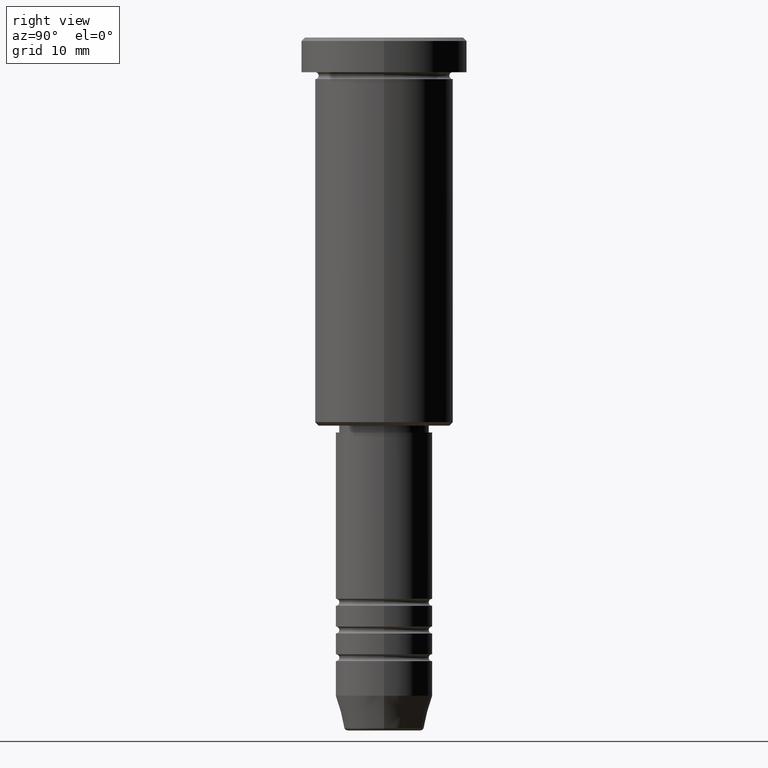
[diagram: clean part render]
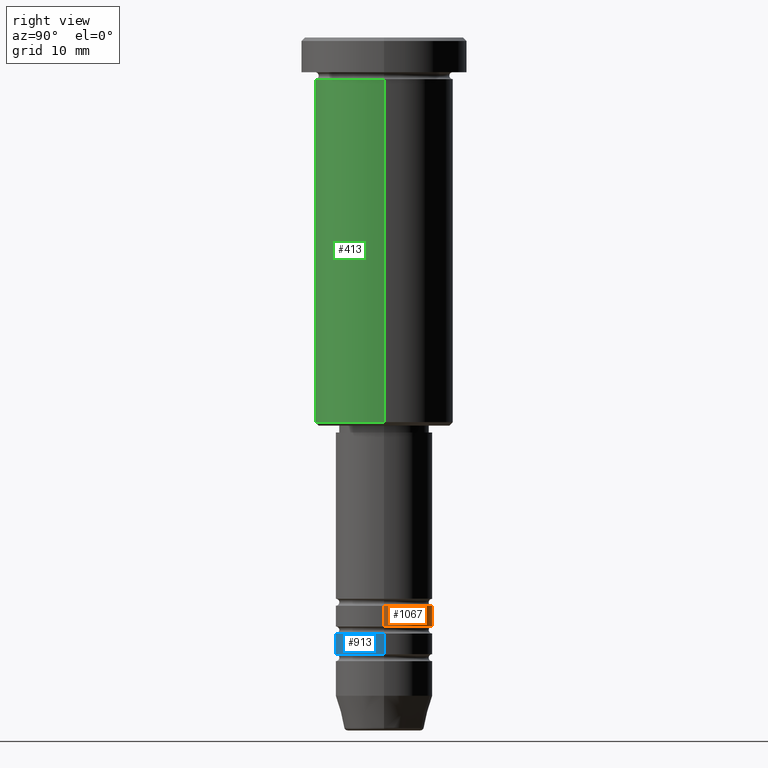
[diagram: same view with three faces highlighted in distinct colors, each labeled with its STEP entity id]
A machine part, right view with three faces highlighted in distinct colors.
Their STEP definitions:

[orange] entity #1067 — the highlighted cylindrical surface (partial cylindrical patch) has radius 7 mm, axis along (-0, -0, 1).
#13 = CARTESIAN_POINT ( 'NONE',  ( 0.000000000000000000, 0.000000000000000000, -81.99999999999998579 ) ) ;
#34 = DIRECTION ( 'NONE',  ( -0.000000000000000000, -0.000000000000000000, 1.000000000000000000 ) ) ;
#114 = CARTESIAN_POINT ( 'NONE',  ( 0.000000000000000000, 0.000000000000000000, -84.99999999999998579 ) ) ;
#128 = VECTOR ( 'NONE', #34, 1000.000000000000000 ) ;
#130 = CARTESIAN_POINT ( 'NONE',  ( -7.000000000000002665, 8.572527594031475162E-16, -84.99999999999998579 ) ) ;
#131 = AXIS2_PLACEMENT_3D ( 'NONE', #150, #422, #324 ) ;
#145 = VECTOR ( 'NONE', #969, 1000.000000000000000 ) ;
#150 = CARTESIAN_POINT ( 'NONE',  ( 0.000000000000000000, 0.000000000000000000, 0.000000000000000000 ) ) ;
#171 = EDGE_CURVE ( 'NONE', #1170, #435, #240, .T. ) ;
#240 = LINE ( 'NONE', #974, #145 ) ;
#274 = ORIENTED_EDGE ( 'NONE', *, *, #171, .T. ) ;
#317 = EDGE_CURVE ( 'NONE', #609, #435, #595, .T. ) ;
#324 = DIRECTION ( 'NONE',  ( 1.000000000000000000, 0.000000000000000000, 0.000000000000000000 ) ) ;
#340 = CIRCLE ( 'NONE', #583, 7.000000000000002665 ) ;
#355 = ORIENTED_EDGE ( 'NONE', *, *, #759, .F. ) ;
#361 = DIRECTION ( 'NONE',  ( -0.000000000000000000, -0.000000000000000000, 1.000000000000000000 ) ) ;
#422 = DIRECTION ( 'NONE',  ( -0.000000000000000000, -0.000000000000000000, 1.000000000000000000 ) ) ;
#435 = VERTEX_POINT ( 'NONE', #1123 ) ;
#462 = DIRECTION ( 'NONE',  ( -0.000000000000000000, -0.000000000000000000, 1.000000000000000000 ) ) ;
#472 = DIRECTION ( 'NONE',  ( 1.000000000000000000, 0.000000000000000000, 0.000000000000000000 ) ) ;
#486 = CARTESIAN_POINT ( 'NONE',  ( 7.000000000000000888, 0.000000000000000000, 0.000000000000000000 ) ) ;
#583 = AXIS2_PLACEMENT_3D ( 'NONE', #114, #462, #472 ) ;
#595 = CIRCLE ( 'NONE', #777, 7.000000000000000000 ) ;
#607 = ORIENTED_EDGE ( 'NONE', *, *, #1138, .T. ) ;
#609 = VERTEX_POINT ( 'NONE', #1006 ) ;
#648 = LINE ( 'NONE', #486, #128 ) ;
#759 = EDGE_CURVE ( 'NONE', #792, #609, #648, .T. ) ;
#777 = AXIS2_PLACEMENT_3D ( 'NONE', #13, #361, #1106 ) ;
#789 = CYLINDRICAL_SURFACE ( 'NONE', #131, 7.000000000000000888 ) ;
#792 = VERTEX_POINT ( 'NONE', #838 ) ;
#838 = CARTESIAN_POINT ( 'NONE',  ( 7.000000000000002665, 0.000000000000000000, -84.99999999999998579 ) ) ;
#969 = DIRECTION ( 'NONE',  ( -0.000000000000000000, -0.000000000000000000, 1.000000000000000000 ) ) ;
#974 = CARTESIAN_POINT ( 'NONE',  ( -7.000000000000000888, 8.572527594031474176E-16, 0.000000000000000000 ) ) ;
#1006 = CARTESIAN_POINT ( 'NONE',  ( 7.000000000000000000, 0.000000000000000000, -81.99999999999998579 ) ) ;
#1029 = ORIENTED_EDGE ( 'NONE', *, *, #317, .F. ) ;
#1051 = FACE_OUTER_BOUND ( 'NONE', #1124, .T. ) ;
#1067 = ADVANCED_FACE ( 'NONE', ( #1051 ), #789, .T. ) ;
#1106 = DIRECTION ( 'NONE',  ( 1.000000000000000000, 0.000000000000000000, 0.000000000000000000 ) ) ;
#1123 = CARTESIAN_POINT ( 'NONE',  ( -7.000000000000000000, 8.572527594031473190E-16, -81.99999999999998579 ) ) ;
#1124 = EDGE_LOOP ( 'NONE', ( #607, #274, #1029, #355 ) ) ;
#1138 = EDGE_CURVE ( 'NONE', #792, #1170, #340, .T. ) ;
#1170 = VERTEX_POINT ( 'NONE', #130 ) ;

[blue] entity #913 — the highlighted cylindrical surface (partial cylindrical patch) has radius 7 mm, axis along (-0, -0, 1).
#21 = DIRECTION ( 'NONE',  ( -0.000000000000000000, -0.000000000000000000, 1.000000000000000000 ) ) ;
#41 = FACE_OUTER_BOUND ( 'NONE', #781, .T. ) ;
#44 = CIRCLE ( 'NONE', #906, 7.000000000000000000 ) ;
#102 = CARTESIAN_POINT ( 'NONE',  ( -7.000000000000000888, 8.572527594031474176E-16, -88.99999999999998579 ) ) ;
#107 = LINE ( 'NONE', #1032, #640 ) ;
#134 = CARTESIAN_POINT ( 'NONE',  ( -7.000000000000000000, 8.572527594031473190E-16, -86.00000000000000000 ) ) ;
#154 = VERTEX_POINT ( 'NONE', #397 ) ;
#168 = VECTOR ( 'NONE', #21, 1000.000000000000000 ) ;
#180 = CARTESIAN_POINT ( 'NONE',  ( 0.000000000000000000, 0.000000000000000000, -88.99999999999998579 ) ) ;
#278 = EDGE_CURVE ( 'NONE', #679, #304, #44, .T. ) ;
#304 = VERTEX_POINT ( 'NONE', #817 ) ;
#309 = VERTEX_POINT ( 'NONE', #102 ) ;
#313 = CARTESIAN_POINT ( 'NONE',  ( 7.000000000000000888, 0.000000000000000000, 0.000000000000000000 ) ) ;
#321 = DIRECTION ( 'NONE',  ( 1.000000000000000000, 0.000000000000000000, 0.000000000000000000 ) ) ;
#338 = AXIS2_PLACEMENT_3D ( 'NONE', #180, #996, #377 ) ;
#377 = DIRECTION ( 'NONE',  ( 1.000000000000000000, 0.000000000000000000, 0.000000000000000000 ) ) ;
#379 = EDGE_CURVE ( 'NONE', #309, #154, #560, .T. ) ;
#393 = AXIS2_PLACEMENT_3D ( 'NONE', #1135, #507, #321 ) ;
#397 = CARTESIAN_POINT ( 'NONE',  ( 7.000000000000000888, 0.000000000000000000, -88.99999999999998579 ) ) ;
#416 = CARTESIAN_POINT ( 'NONE',  ( 0.000000000000000000, 0.000000000000000000, -86.00000000000000000 ) ) ;
#488 = ORIENTED_EDGE ( 'NONE', *, *, #278, .F. ) ;
#507 = DIRECTION ( 'NONE',  ( -0.000000000000000000, -0.000000000000000000, 1.000000000000000000 ) ) ;
#560 = CIRCLE ( 'NONE', #338, 7.000000000000000888 ) ;
#604 = DIRECTION ( 'NONE',  ( -0.000000000000000000, -0.000000000000000000, 1.000000000000000000 ) ) ;
#640 = VECTOR ( 'NONE', #766, 1000.000000000000000 ) ;
#669 = ORIENTED_EDGE ( 'NONE', *, *, #768, .T. ) ;
#677 = EDGE_CURVE ( 'NONE', #309, #679, #107, .T. ) ;
#679 = VERTEX_POINT ( 'NONE', #134 ) ;
#706 = DIRECTION ( 'NONE',  ( 1.000000000000000000, 0.000000000000000000, 0.000000000000000000 ) ) ;
#766 = DIRECTION ( 'NONE',  ( -0.000000000000000000, -0.000000000000000000, 1.000000000000000000 ) ) ;
#768 = EDGE_CURVE ( 'NONE', #154, #304, #926, .T. ) ;
#773 = ORIENTED_EDGE ( 'NONE', *, *, #379, .T. ) ;
#774 = CYLINDRICAL_SURFACE ( 'NONE', #393, 7.000000000000000888 ) ;
#781 = EDGE_LOOP ( 'NONE', ( #1118, #773, #669, #488 ) ) ;
#817 = CARTESIAN_POINT ( 'NONE',  ( 7.000000000000000000, 0.000000000000000000, -86.00000000000000000 ) ) ;
#906 = AXIS2_PLACEMENT_3D ( 'NONE', #416, #604, #706 ) ;
#913 = ADVANCED_FACE ( 'NONE', ( #41 ), #774, .T. ) ;
#926 = LINE ( 'NONE', #313, #168 ) ;
#996 = DIRECTION ( 'NONE',  ( -0.000000000000000000, -0.000000000000000000, 1.000000000000000000 ) ) ;
#1032 = CARTESIAN_POINT ( 'NONE',  ( -7.000000000000000888, 8.572527594031474176E-16, 0.000000000000000000 ) ) ;
#1118 = ORIENTED_EDGE ( 'NONE', *, *, #677, .F. ) ;
#1135 = CARTESIAN_POINT ( 'NONE',  ( 0.000000000000000000, 0.000000000000000000, 0.000000000000000000 ) ) ;

[green] entity #413 — the highlighted cylindrical surface (partial cylindrical patch) has radius 10 mm, axis along (-0, -0, 1).
#54 = CARTESIAN_POINT ( 'NONE',  ( -9.999999999999998224, 1.224646799147353059E-15, -55.50000000000002842 ) ) ;
#74 = DIRECTION ( 'NONE',  ( -0.000000000000000000, -0.000000000000000000, 1.000000000000000000 ) ) ;
#117 = CARTESIAN_POINT ( 'NONE',  ( -10.00000000000000000, 1.224646799147353256E-15, -6.000000000000000000 ) ) ;
#155 = CARTESIAN_POINT ( 'NONE',  ( 0.000000000000000000, 0.000000000000000000, -6.000000000000000000 ) ) ;
#194 = CARTESIAN_POINT ( 'NONE',  ( 0.000000000000000000, 0.000000000000000000, 0.000000000000000000 ) ) ;
#204 = VECTOR ( 'NONE', #418, 1000.000000000000000 ) ;
#235 = CARTESIAN_POINT ( 'NONE',  ( 9.999999999999998224, 0.000000000000000000, 0.000000000000000000 ) ) ;
#255 = EDGE_CURVE ( 'NONE', #846, #349, #871, .T. ) ;
#262 = VECTOR ( 'NONE', #919, 1000.000000000000000 ) ;
#346 = DIRECTION ( 'NONE',  ( -1.000000000000000000, 0.000000000000000000, 0.000000000000000000 ) ) ;
#349 = VERTEX_POINT ( 'NONE', #1003 ) ;
#359 = AXIS2_PLACEMENT_3D ( 'NONE', #155, #74, #898 ) ;
#413 = ADVANCED_FACE ( 'NONE', ( #644 ), #1009, .T. ) ;
#418 = DIRECTION ( 'NONE',  ( -0.000000000000000000, -0.000000000000000000, 1.000000000000000000 ) ) ;
#421 = ORIENTED_EDGE ( 'NONE', *, *, #510, .T. ) ;
#459 = DIRECTION ( 'NONE',  ( 1.000000000000000000, 0.000000000000000000, 0.000000000000000000 ) ) ;
#504 = AXIS2_PLACEMENT_3D ( 'NONE', #194, #553, #459 ) ;
#510 = EDGE_CURVE ( 'NONE', #929, #1165, #908, .T. ) ;
#553 = DIRECTION ( 'NONE',  ( -0.000000000000000000, -0.000000000000000000, 1.000000000000000000 ) ) ;
#602 = EDGE_CURVE ( 'NONE', #929, #846, #995, .T. ) ;
#644 = FACE_OUTER_BOUND ( 'NONE', #1183, .T. ) ;
#683 = ORIENTED_EDGE ( 'NONE', *, *, #602, .F. ) ;
#803 = DIRECTION ( 'NONE',  ( -0.000000000000000000, -0.000000000000000000, 1.000000000000000000 ) ) ;
#846 = VERTEX_POINT ( 'NONE', #117 ) ;
#871 = CIRCLE ( 'NONE', #359, 10.00000000000000000 ) ;
#898 = DIRECTION ( 'NONE',  ( 1.000000000000000000, 0.000000000000000000, 0.000000000000000000 ) ) ;
#907 = CARTESIAN_POINT ( 'NONE',  ( -9.999999999999998224, 1.224646799147353059E-15, 0.000000000000000000 ) ) ;
#908 = CIRCLE ( 'NONE', #1097, 9.999999999999998224 ) ;
#919 = DIRECTION ( 'NONE',  ( -0.000000000000000000, -0.000000000000000000, 1.000000000000000000 ) ) ;
#929 = VERTEX_POINT ( 'NONE', #54 ) ;
#945 = CARTESIAN_POINT ( 'NONE',  ( 9.999999999999998224, 0.000000000000000000, -55.50000000000002842 ) ) ;
#967 = CARTESIAN_POINT ( 'NONE',  ( 0.000000000000000000, 0.000000000000000000, -55.50000000000002842 ) ) ;
#973 = ORIENTED_EDGE ( 'NONE', *, *, #1052, .T. ) ;
#995 = LINE ( 'NONE', #907, #262 ) ;
#1003 = CARTESIAN_POINT ( 'NONE',  ( 10.00000000000000000, 0.000000000000000000, -6.000000000000000000 ) ) ;
#1009 = CYLINDRICAL_SURFACE ( 'NONE', #504, 9.999999999999998224 ) ;
#1052 = EDGE_CURVE ( 'NONE', #1165, #349, #1054, .T. ) ;
#1054 = LINE ( 'NONE', #235, #204 ) ;
#1089 = ORIENTED_EDGE ( 'NONE', *, *, #255, .F. ) ;
#1097 = AXIS2_PLACEMENT_3D ( 'NONE', #967, #803, #346 ) ;
#1165 = VERTEX_POINT ( 'NONE', #945 ) ;
#1183 = EDGE_LOOP ( 'NONE', ( #683, #421, #973, #1089 ) ) ;